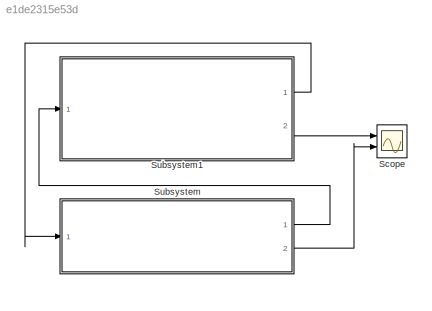
MODEL slx_e1de2315e53d
KIND model
CONFIG AbsTol = auto
CONFIG EnableMultiTasking = on
CONFIG FixedStep = .1
CONFIG MaxStep = auto
CONFIG MinStep = auto
CONFIG PreLoadFcn = g = 9.83;          % acceleration of gravity (m/sec^2)\nL = 67;            % pendulum length (m)\ninitial_x = L/100; % initial x coordinate (m)\ninitial_y = 0;     % initial y coordinate (m)\ninitial_xdot = 0;  % initial x velocity (m/sec)\ninitial_ydot = 0;  % initial y velocity (m/sec)\nOmega=2*pi/86400;  % Earth's angular velocity of rotation about its axis (rad/sec)\nlambda=49/180*pi;  % latitude in ...<+5ch>
CONFIG RelTol = 1e-5
CONFIG SampleTimeConstraint = Unconstrained
CONFIG Solver = ode23t
CONFIG SolverName = ode23t
CONFIG StartTime = 0.0
CONFIG StopTime = 3600
BLOCK [Scope] Scope
  Floating = off
  NumInputPorts = 2
  Ports = [2]
  ScopeSpecificationString = Simulink.scopes.TimeScopeBlockCfg('CurrentConfiguration', extmgr.ConfigurationSet(extmgr.Configuration('Core','General UI',true),extmgr.Configuration('Core','Source UI',true),extmgr.Configuration('Sources','WiredSimulink',true,'DataLoggingVariableName','output','DataLoggingSaveFormat','StructureWithTime','DataLoggingDecimation','1','DataLoggingDecimateData',true),extmgr.Configuration('Visuals','Ti...<+2711ch>
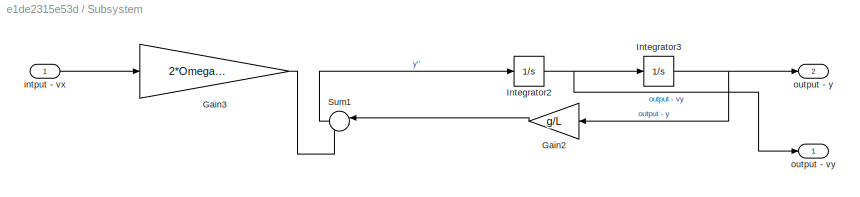
BLOCK [SubSystem] Subsystem
  Ports = [1, 2]
  RequestExecContextInheritance = off
BLOCK [Gain] Subsystem/Gain2
  Gain = g/L
  OutDataTypeStr = Inherit: Inherit via internal rule
  ParamDataTypeStr = Inherit: Inherit via internal rule
  SaturateOnIntegerOverflow = off
BLOCK [Gain] Subsystem/Gain3
  Gain = 2*Omega*sin(lambda)
  OutDataTypeStr = Inherit: Inherit via internal rule
  ParamDataTypeStr = Inherit: Inherit via internal rule
  SaturateOnIntegerOverflow = off
BLOCK [Integrator] Subsystem/Integrator2
  InitialCondition = initial_ydot
  Ports = [1, 1]
BLOCK [Integrator] Subsystem/Integrator3
  InitialCondition = initial_y
  Ports = [1, 1]
BLOCK [Sum] Subsystem/Sum1
  IconShape = round
  InputSameDT = off
  Inputs = |--
  OutDataTypeStr = Inherit: Inherit via internal rule
  Ports = [2, 1]
  SaturateOnIntegerOverflow = off
BLOCK [Inport] Subsystem/intput - vx
  IconDisplay = Port number
BLOCK [Outport] Subsystem/output - vy
  IconDisplay = Port number
BLOCK [Outport] Subsystem/output - y
  IconDisplay = Port number
  Port = 2
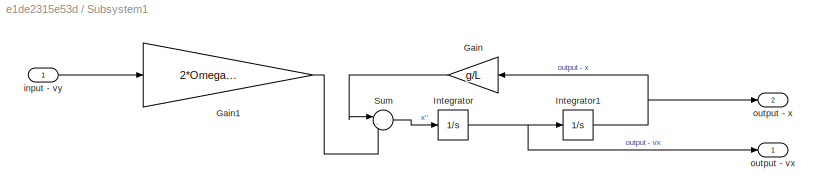
BLOCK [SubSystem] Subsystem1
  Ports = [1, 2]
  RequestExecContextInheritance = off
BLOCK [Gain] Subsystem1/Gain
  Gain = g/L
  OutDataTypeStr = Inherit: Inherit via internal rule
  ParamDataTypeStr = Inherit: Inherit via internal rule
  SaturateOnIntegerOverflow = off
BLOCK [Gain] Subsystem1/Gain1
  Gain = 2*Omega*sin(lambda)
  OutDataTypeStr = Inherit: Inherit via internal rule
  ParamDataTypeStr = Inherit: Inherit via internal rule
  SaturateOnIntegerOverflow = off
BLOCK [Integrator] Subsystem1/Integrator
  InitialCondition = initial_xdot
  Ports = [1, 1]
BLOCK [Integrator] Subsystem1/Integrator1
  InitialCondition = initial_x
  Ports = [1, 1]
BLOCK [Sum] Subsystem1/Sum
  IconShape = round
  InputSameDT = off
  Inputs = |-+
  OutDataTypeStr = Inherit: Inherit via internal rule
  Ports = [2, 1]
  SaturateOnIntegerOverflow = off
BLOCK [Inport] Subsystem1/input - vy
  IconDisplay = Port number
BLOCK [Outport] Subsystem1/output - vx
  IconDisplay = Port number
BLOCK [Outport] Subsystem1/output - x
  IconDisplay = Port number
  Port = 2
LINE Subsystem/Gain2:1 -> Subsystem/Sum1:1
LINE Subsystem/Gain3:1 -> Subsystem/Sum1:2
NET Subsystem/Integrator2:1 -> Subsystem/Integrator3:1, Subsystem/output - vy:1
NET Subsystem/Integrator3:1 -> Subsystem/Gain2:1, Subsystem/output - y:1
LINE Subsystem/Sum1:1 -> Subsystem/Integrator2:1
LINE Subsystem/intput - vx:1 -> Subsystem/Gain3:1
LINE Subsystem1/Gain1:1 -> Subsystem1/Sum:2
LINE Subsystem1/Gain:1 -> Subsystem1/Sum:1
NET Subsystem1/Integrator1:1 -> Subsystem1/Gain:1, Subsystem1/output - x:1
NET Subsystem1/Integrator:1 -> Subsystem1/Integrator1:1, Subsystem1/output - vx:1
LINE Subsystem1/Sum:1 -> Subsystem1/Integrator:1
LINE Subsystem1/input - vy:1 -> Subsystem1/Gain1:1
LINE Subsystem1:1 -> Subsystem:1
LINE Subsystem1:2 -> Scope:1
LINE Subsystem:1 -> Subsystem1:1
LINE Subsystem:2 -> Scope:2
note: NET lines group one-source signal fan-out (src -> all destinations, sorted); 1:1 wires keep LINE
